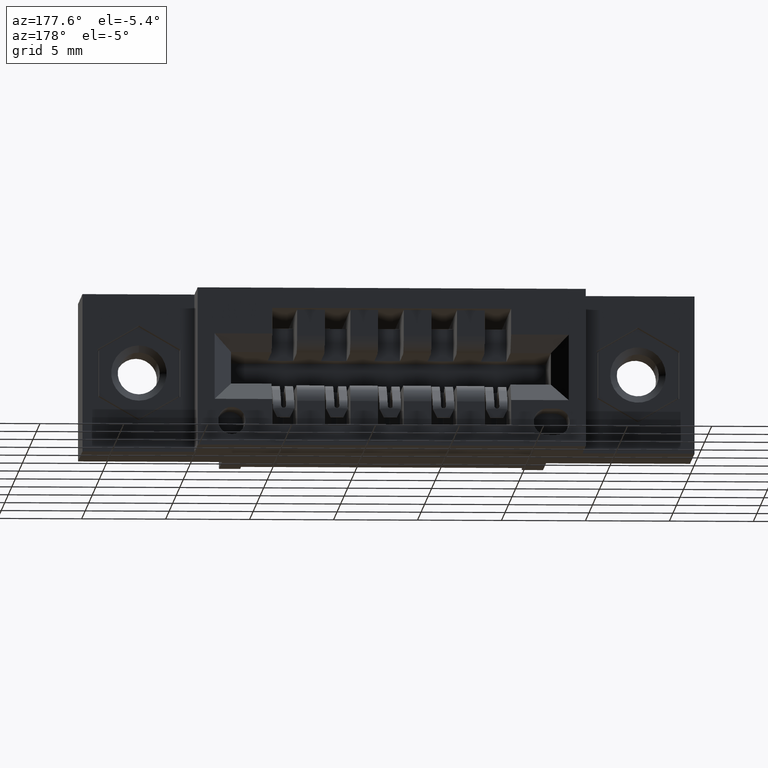
[diagram: clean part render]
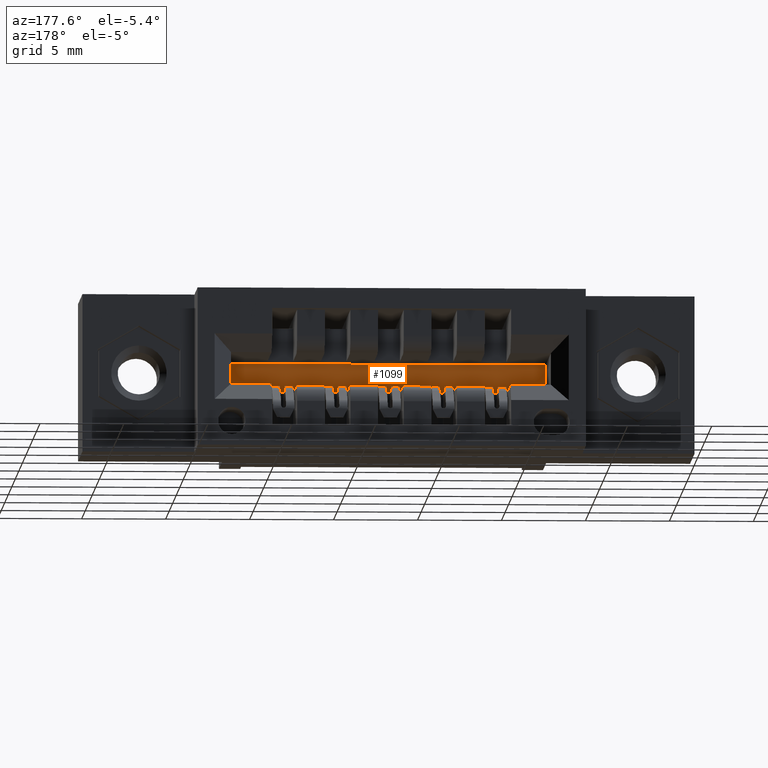
[diagram: same view with one face highlighted and labeled with its STEP entity id]
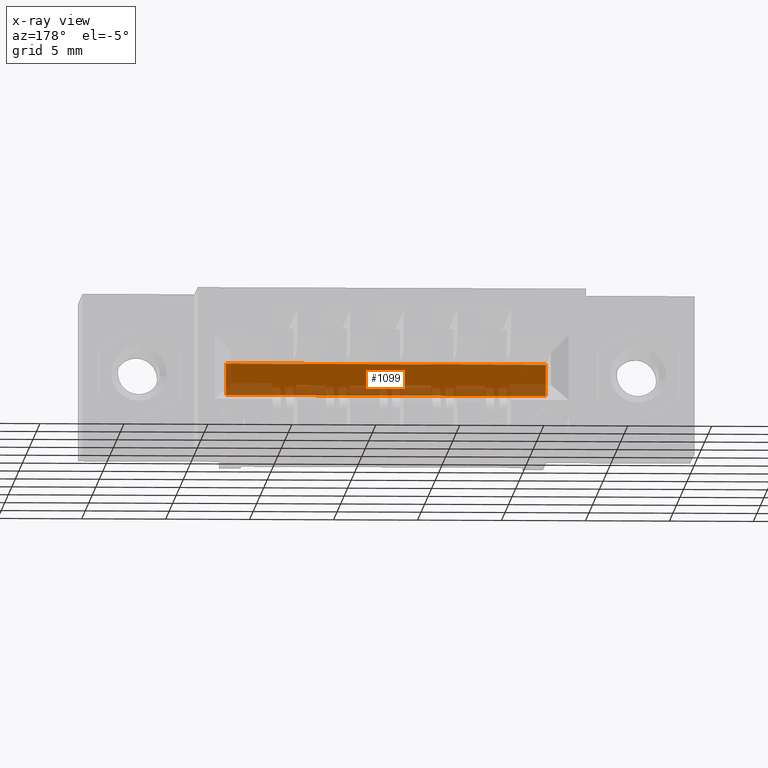
[diagram: x-ray of the same camera — body ghosted, the highlighted face saturated]
A machine part, auxiliary view. The second image highlights one B-rep face of the part: STEP entity #1099.
The next image is the same camera in x-ray: the body ghosted, the highlighted face saturated — about 29% of this face is hidden behind the body in this view.
In plain terms, the highlighted planar face has unit normal (0, 1, 0).
Its self-contained STEP definition (entity closure, byte-faithful):
#115 = VERTEX_POINT ( 'NONE', #8476 ) ;
#943 = EDGE_CURVE ( 'NONE', #3654, #3769, #5090, .T. ) ;
#1099 = ADVANCED_FACE ( 'NONE', ( #6041 ), #8115, .T. ) ;
#1118 = EDGE_LOOP ( 'NONE', ( #2735, #1691, #7600, #8523 ) ) ;
#1499 = EDGE_CURVE ( 'NONE', #7276, #115, #7861, .T. ) ;
#1590 = EDGE_CURVE ( 'NONE', #115, #3654, #5125, .T. ) ;
#1691 = ORIENTED_EDGE ( 'NONE', *, *, #943, .T. ) ;
#1719 = VECTOR ( 'NONE', #4222, 39.37007874015748143 ) ;
#2278 = EDGE_CURVE ( 'NONE', #3769, #7276, #6567, .T. ) ;
#2417 = CARTESIAN_POINT ( 'NONE',  ( 0.3425000000000000266, 0.2699999999999999067, -0.1480000000000000759 ) ) ;
#2735 = ORIENTED_EDGE ( 'NONE', *, *, #1590, .T. ) ;
#2980 = CARTESIAN_POINT ( 'NONE',  ( 0.3425000000000000266, 0.2699999999999999067, -0.1480000000000000759 ) ) ;
#3237 = VECTOR ( 'NONE', #5303, 39.37007874015748143 ) ;
#3366 = CARTESIAN_POINT ( 'NONE',  ( 1.092500000000000471, 0.2699999999999999067, -0.2220000000000000862 ) ) ;
#3481 = CARTESIAN_POINT ( 'NONE',  ( 0.3425000000000000266, 0.2699999999999999067, -0.2220000000000000862 ) ) ;
#3654 = VERTEX_POINT ( 'NONE', #4664 ) ;
#3769 = VERTEX_POINT ( 'NONE', #3366 ) ;
#4222 = DIRECTION ( 'NONE',  ( 0.0000000000000000000, 0.0000000000000000000, 1.000000000000000000 ) ) ;
#4440 = AXIS2_PLACEMENT_3D ( 'NONE', #2417, #7366, #5180 ) ;
#4487 = CARTESIAN_POINT ( 'NONE',  ( 0.3425000000000000266, 0.2699999999999999067, -0.2220000000000000862 ) ) ;
#4664 = CARTESIAN_POINT ( 'NONE',  ( 1.092500000000000471, 0.2699999999999999067, -0.1480000000000000759 ) ) ;
#5090 = LINE ( 'NONE', #5661, #6968 ) ;
#5125 = LINE ( 'NONE', #2980, #3237 ) ;
#5180 = DIRECTION ( 'NONE',  ( 0.0000000000000000000, -0.0000000000000000000, 1.000000000000000000 ) ) ;
#5303 = DIRECTION ( 'NONE',  ( 1.000000000000000000, 0.0000000000000000000, 0.0000000000000000000 ) ) ;
#5661 = CARTESIAN_POINT ( 'NONE',  ( 1.092500000000000471, 0.2699999999999999067, -0.2220000000000000862 ) ) ;
#6041 = FACE_OUTER_BOUND ( 'NONE', #1118, .T. ) ;
#6516 = DIRECTION ( 'NONE',  ( -0.0000000000000000000, -0.0000000000000000000, -1.000000000000000000 ) ) ;
#6567 = LINE ( 'NONE', #3481, #6742 ) ;
#6742 = VECTOR ( 'NONE', #7009, 39.37007874015748143 ) ;
#6968 = VECTOR ( 'NONE', #6516, 39.37007874015748143 ) ;
#7009 = DIRECTION ( 'NONE',  ( -1.000000000000000000, -0.0000000000000000000, -0.0000000000000000000 ) ) ;
#7276 = VERTEX_POINT ( 'NONE', #4487 ) ;
#7366 = DIRECTION ( 'NONE',  ( 0.0000000000000000000, 1.000000000000000000, 0.0000000000000000000 ) ) ;
#7600 = ORIENTED_EDGE ( 'NONE', *, *, #2278, .T. ) ;
#7824 = CARTESIAN_POINT ( 'NONE',  ( 0.3425000000000000266, 0.2699999999999999067, -0.2220000000000000862 ) ) ;
#7861 = LINE ( 'NONE', #7824, #1719 ) ;
#8115 = PLANE ( 'NONE',  #4440 ) ;
#8476 = CARTESIAN_POINT ( 'NONE',  ( 0.3425000000000000266, 0.2699999999999999067, -0.1480000000000000759 ) ) ;
#8523 = ORIENTED_EDGE ( 'NONE', *, *, #1499, .T. ) ;